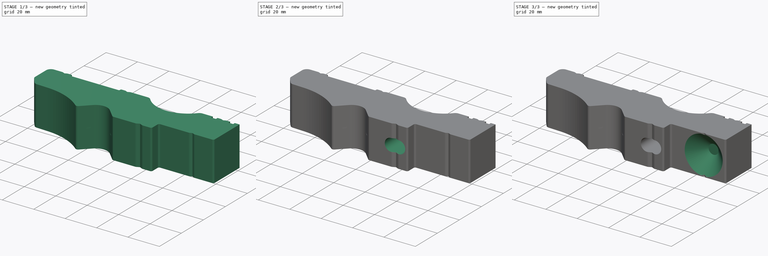
[diagram: build sequence overview — one tinted view per stage of 3, left to right]
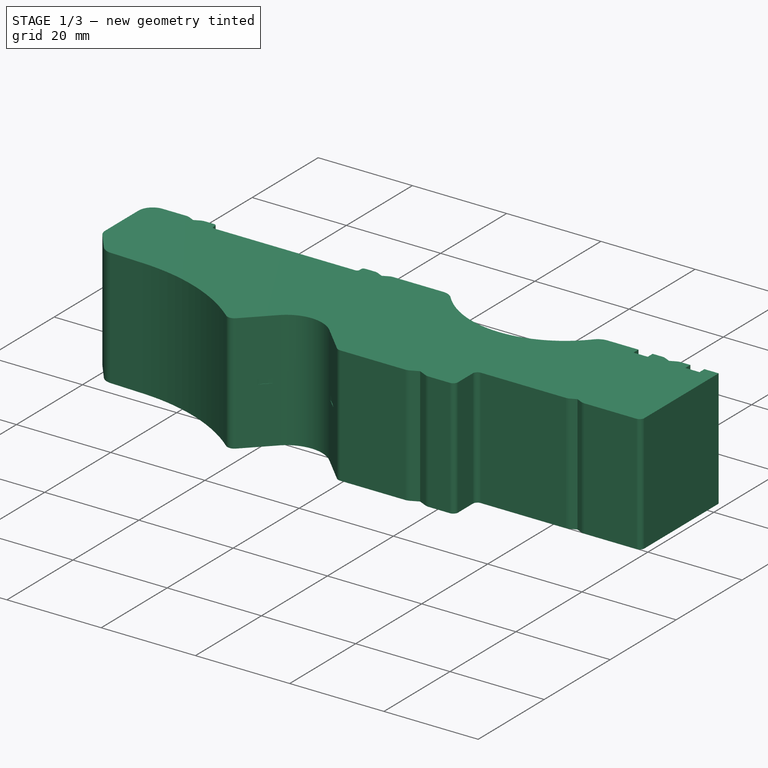
[diagram: stage 1 of 3 — iso view after this stage's code; geometry added in this stage tinted green]
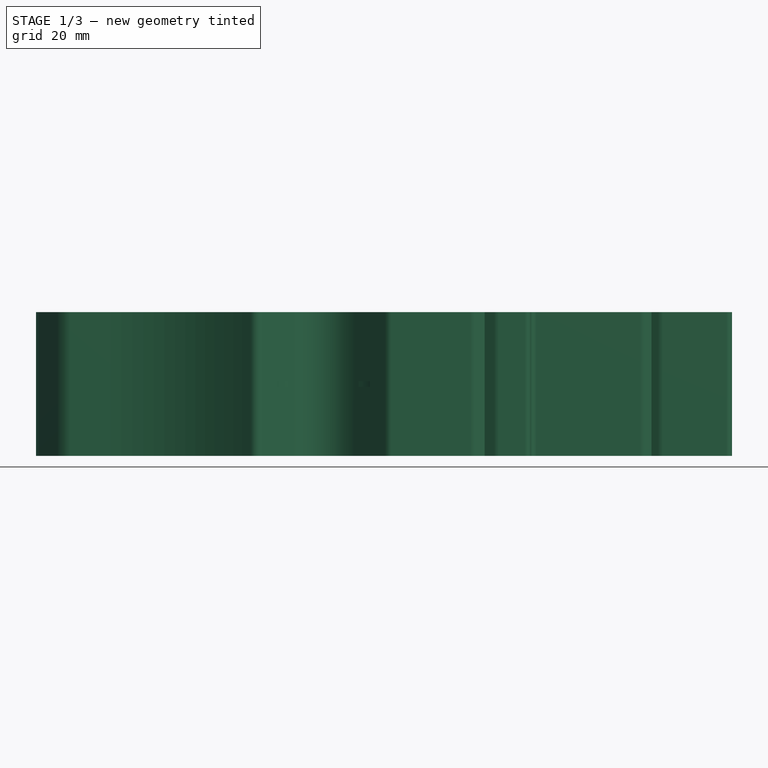
[diagram: stage 1 of 3 — front view after this stage's code; geometry added in this stage tinted green]
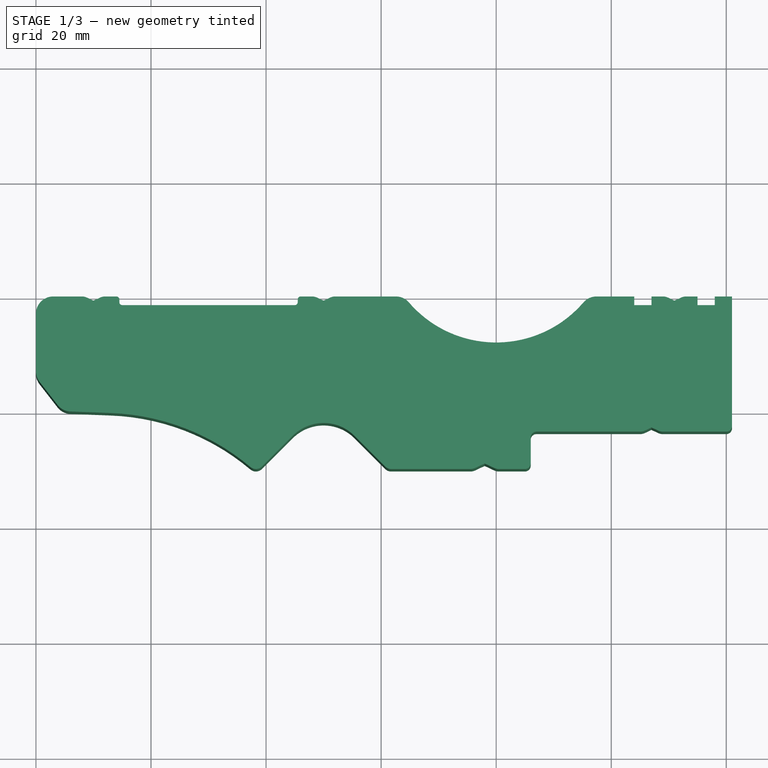
[diagram: stage 1 of 3 — top view after this stage's code; geometry added in this stage tinted green]
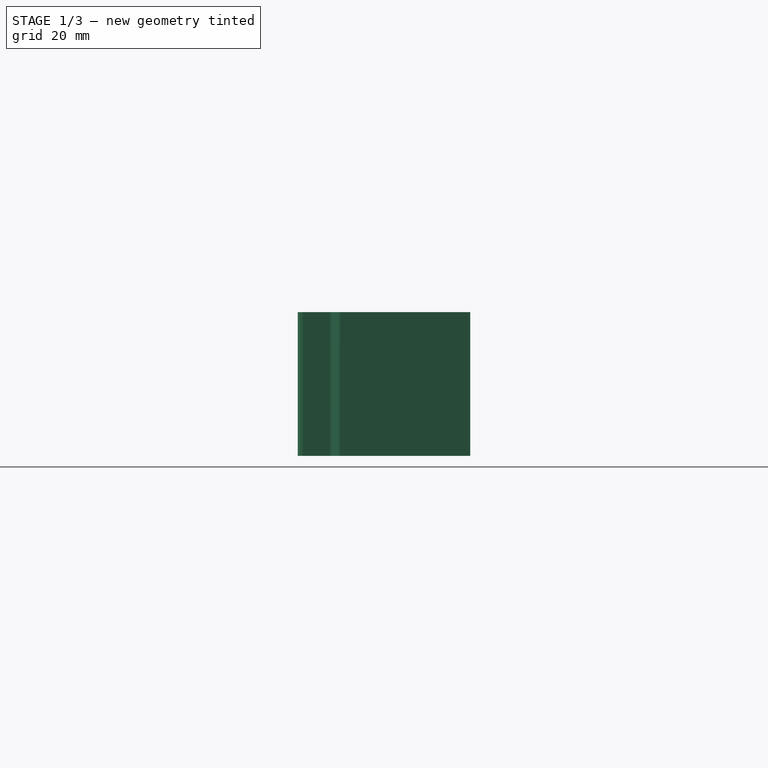
[diagram: stage 1 of 3 — right view after this stage's code; geometry added in this stage tinted green]
FCSTD DOCUMENT  (FreeCAD 0.19R24267 +99 (Git))
Label: V2 Clamp top
License: All rights reserved
LicenseURL: http://en.wikipedia.org/wiki/All_rights_reserved
objects: Sketcher::SketchObject×6, PartDesign::Pocket×4, PartDesign::Pad×1, PartDesign::Hole×1, PartDesign::Body×1
note: 19 computed .brp shape members not serialized (recipe doc carries the construction recipe); baked Part::Feature solids carry a one-line shape summary decoded from their .brp

FEATURE [Sketcher::SketchObject] Sketch  label="Main profile sketch"
  FullyConstrained = true
  MapMode = 5
  Support = -> [XY_Plane]
  sketch-geometry (86):
    g0: LineSegment StartX=0 StartY=-3 StartZ=0 EndX=0 EndY=-13 EndZ=0
    g1: LineSegment StartX=3 StartY=0 StartZ=0 EndX=8 EndY=0 EndZ=0
    g2: ArcOfCircle CenterX=3 CenterY=-3 CenterZ=0 NormalX=0 NormalY=0 NormalZ=1 AngleXU=0 Radius=3 StartAngle=1.5708 EndAngle=3.14159
    g3: LineSegment StartX=6 StartY=-20 StartZ=0 EndX=13 EndY=-20.2636 EndZ=0
    g4: Circle CenterX=50 CenterY=-33 CenterZ=0 NormalX=0 NormalY=0 NormalZ=1 AngleXU=0 Radius=10
    g5: GeomPoint X=0 Y=-63 Z=0
    g6: GeomPoint X=0 Y=-28 Z=0
    g7: ArcOfCircle CenterX=50 CenterY=-29.5858 CenterZ=0 NormalX=0 NormalY=0 NormalZ=1 AngleXU=0 Radius=7.58579 StartAngle=0.785398 EndAngle=2.35619
    g8: LineSegment StartX=44.636 StartY=-24.2218 StartZ=0 EndX=39.2972 EndY=-29.5607 EndZ=0
    g9: LineSegment StartX=55.364 StartY=-24.2218 StartZ=0 EndX=60.7028 EndY=-29.5607 EndZ=0
    g10: ArcOfCircle CenterX=38.2365 CenterY=-28.5 CenterZ=0 NormalX=0 NormalY=0 NormalZ=1 AngleXU=0 Radius=1.5 StartAngle=4.01218 EndAngle=5.49779
    g11: ArcOfCircle CenterX=11.4948 CenterY=-60.2353 CenterZ=0 NormalX=0 NormalY=0 NormalZ=1 AngleXU=0 Radius=40 StartAngle=0.870584 EndAngle=1.53316
    g12: LineSegment StartX=50 StartY=-33 StartZ=0 EndX=50 EndY=-22 EndZ=0
    g13: GeomPoint X=50 Y=-23 Z=0
    g14: LineSegment StartX=61.7635 StartY=-30 StartZ=0 EndX=75.5 EndY=-30 EndZ=0
    g15: ArcOfCircle CenterX=61.7635 CenterY=-28.5 CenterZ=0 NormalX=0 NormalY=0 NormalZ=1 AngleXU=0 Radius=1.5 StartAngle=3.92699 EndAngle=4.71239
    g16: ArcOfCircle CenterX=80 CenterY=12 CenterZ=0 NormalX=0 NormalY=0 NormalZ=1 AngleXU=0 Radius=20 StartAngle=3.85204 EndAngle=5.57274
    g17: ArcOfCircle CenterX=62.5644 CenterY=-3 CenterZ=0 NormalX=0 NormalY=0 NormalZ=1 AngleXU=0 Radius=3 StartAngle=0.710449 EndAngle=1.5708
    g18: ArcOfCircle CenterX=97.4356 CenterY=-3 CenterZ=0 NormalX=0 NormalY=0 NormalZ=1 AngleXU=0 Radius=3 StartAngle=1.5708 EndAngle=2.43114
    g19: LineSegment StartX=75.5 StartY=-30 StartZ=0 EndX=80.5 EndY=-30 EndZ=0
    g20: LineSegment StartX=76.3452 StartY=-29.8126 StartZ=0 EndX=78 EndY=-29.041 EndZ=0
    g21: LineSegment StartX=78 StartY=-29.041 StartZ=0 EndX=79.6548 EndY=-29.8126 EndZ=0
    g22: LineSegment StartX=80.5 StartY=-30 StartZ=0 EndX=85 EndY=-30 EndZ=0
    g23: ArcOfCircle CenterX=75.5 CenterY=-28 CenterZ=0 NormalX=0 NormalY=0 NormalZ=1 AngleXU=0 Radius=2 StartAngle=4.71239 EndAngle=5.14872
    g24: ArcOfCircle CenterX=80.5 CenterY=-28 CenterZ=0 NormalX=0 NormalY=0 NormalZ=1 AngleXU=0 Radius=2 StartAngle=4.27606 EndAngle=4.71239
    g25: LineSegment StartX=86 StartY=-29 StartZ=0 EndX=86 EndY=-24.5 EndZ=0
    g26: LineSegment StartX=87 StartY=-23.5 StartZ=0 EndX=94.8579 EndY=-23.5 EndZ=0
    g27: LineSegment StartX=94.8579 StartY=-23.5 StartZ=0 EndX=103.858 EndY=-14.5 EndZ=0
    g28: LineSegment StartX=103.858 StartY=-14.5 StartZ=0 EndX=110.142 EndY=-14.5 EndZ=0
    g29: LineSegment StartX=94.8579 StartY=-23.5 StartZ=0 EndX=105 EndY=-23.5 EndZ=0
    g30: LineSegment StartX=110.142 StartY=-14.5 StartZ=0 EndX=119.142 EndY=-23.5 EndZ=0
    g31: LineSegment StartX=119.142 StartY=-23.5 StartZ=0 EndX=120 EndY=-23.5 EndZ=0
    g32: LineSegment StartX=121 StartY=0 StartZ=0 EndX=121 EndY=-22.5 EndZ=0
    g33: ArcOfCircle CenterX=120 CenterY=-22.5 CenterZ=0 NormalX=0 NormalY=0 NormalZ=1 AngleXU=0 Radius=1 StartAngle=4.71239 EndAngle=6.28319
    g34: LineSegment StartX=62.5644 StartY=0 StartZ=0 EndX=97.4356 EndY=0 EndZ=0
    g35: Circle CenterX=107 CenterY=-25.5 CenterZ=0 NormalX=0 NormalY=0 NormalZ=1 AngleXU=0 Radius=10
    g36: LineSegment StartX=107 StartY=-25.5 StartZ=0 EndX=107 EndY=-14.5 EndZ=0
    g37: GeomPoint X=107 Y=-15.5 Z=0
    g38: ArcOfCircle CenterX=85 CenterY=-29 CenterZ=0 NormalX=0 NormalY=0 NormalZ=1 AngleXU=0 Radius=1 StartAngle=4.71239 EndAngle=6.28319
    g39: ArcOfCircle CenterX=87 CenterY=-24.5 CenterZ=0 NormalX=0 NormalY=0 NormalZ=1 AngleXU=0 Radius=1 StartAngle=1.5708 EndAngle=3.14159
    g40: LineSegment StartX=109.845 StartY=-0.187384 StartZ=0 EndX=111 EndY=-0.725859 EndZ=0
    g41: LineSegment StartX=111 StartY=-0.725859 StartZ=0 EndX=112.155 EndY=-0.187384 EndZ=0
    g42: LineSegment StartX=109 StartY=0 StartZ=0 EndX=107 EndY=0 EndZ=0
    g43: ArcOfCircle CenterX=109 CenterY=-2 CenterZ=0 NormalX=0 NormalY=0 NormalZ=1 AngleXU=0 Radius=2 StartAngle=1.13446 EndAngle=1.5708
    g44: ArcOfCircle CenterX=113 CenterY=-2 CenterZ=0 NormalX=0 NormalY=0 NormalZ=1 AngleXU=0 Radius=2 StartAngle=1.5708 EndAngle=2.00713
    g45: LineSegment StartX=105.845 StartY=-23.3126 StartZ=0 EndX=107 EndY=-22.7741 EndZ=0
    g46: LineSegment StartX=107 StartY=-22.7741 StartZ=0 EndX=108.155 EndY=-23.3126 EndZ=0
    g47: LineSegment StartX=109 StartY=-23.5 StartZ=0 EndX=119.142 EndY=-23.5 EndZ=0
    g48: LineSegment StartX=105 StartY=-23.5 StartZ=0 EndX=109 EndY=-23.5 EndZ=0
    g49: ArcOfCircle CenterX=105 CenterY=-21.5 CenterZ=0 NormalX=0 NormalY=0 NormalZ=1 AngleXU=0 Radius=2 StartAngle=4.71239 EndAngle=5.14872
    g50: ArcOfCircle CenterX=109 CenterY=-21.5 CenterZ=0 NormalX=0 NormalY=0 NormalZ=1 AngleXU=0 Radius=2 StartAngle=4.27606 EndAngle=4.71239
    g51: ArcOfCircle CenterX=3 CenterY=-13 CenterZ=0 NormalX=0 NormalY=0 NormalZ=1 AngleXU=0 Radius=3 StartAngle=3.14159 EndAngle=3.80266
    g52: LineSegment StartX=0.63198 StartY=-14.8419 StartZ=0 EndX=3.74487 EndY=-18.844 EndZ=0
    g53: LineSegment StartX=8.84524 StartY=-0.187384 StartZ=0 EndX=10 EndY=-0.725859 EndZ=0
    g54: LineSegment StartX=10 StartY=-0.725859 StartZ=0 EndX=11.1548 EndY=-0.187384 EndZ=0
    g55: LineSegment StartX=51.1548 StartY=-0.187384 StartZ=0 EndX=50 EndY=-0.725859 EndZ=0
    g56: LineSegment StartX=50 StartY=-0.725859 StartZ=0 EndX=48.8452 EndY=-0.187384 EndZ=0
    g57: LineSegment StartX=12 StartY=-1.164e-13 StartZ=0 EndX=14 EndY=0 EndZ=0
    g58: LineSegment StartX=52 StartY=-9.95e-14 StartZ=0 EndX=62.5644 EndY=0 EndZ=0
    g59: ArcOfCircle CenterX=8 CenterY=-2 CenterZ=0 NormalX=0 NormalY=0 NormalZ=1 AngleXU=0 Radius=2 StartAngle=1.13446 EndAngle=1.5708
    g60: ArcOfCircle CenterX=12 CenterY=-2 CenterZ=0 NormalX=0 NormalY=0 NormalZ=1 AngleXU=0 Radius=2 StartAngle=1.5708 EndAngle=2.00713
    g61: ArcOfCircle CenterX=48 CenterY=-2 CenterZ=0 NormalX=0 NormalY=0 NormalZ=1 AngleXU=0 Radius=2 StartAngle=1.13446 EndAngle=1.5708
    g62: ArcOfCircle CenterX=52 CenterY=-2 CenterZ=0 NormalX=0 NormalY=0 NormalZ=1 AngleXU=0 Radius=2 StartAngle=1.5708 EndAngle=2.00713
    g63: ArcOfCircle CenterX=6.11289 CenterY=-17.0021 CenterZ=0 NormalX=0 NormalY=0 NormalZ=1 AngleXU=0 Radius=3 StartAngle=3.80266 EndAngle=4.67475
    g64: LineSegment StartX=118 StartY=0 StartZ=0 EndX=118 EndY=-1.5 EndZ=0
    g65: LineSegment StartX=118 StartY=-1.5 StartZ=0 EndX=115 EndY=-1.5 EndZ=0
    g66: LineSegment StartX=115 StartY=-1.5 StartZ=0 EndX=115 EndY=0 EndZ=0
    g67: LineSegment StartX=115 StartY=0 StartZ=0 EndX=113 EndY=0 EndZ=0
    g68: LineSegment StartX=115 StartY=0 StartZ=0 EndX=118 EndY=0 EndZ=0
    g69: LineSegment StartX=118 StartY=0 StartZ=0 EndX=121 EndY=0 EndZ=0
    g70: GeomPoint X=116.5 Y=-1.5 Z=0
    g71: LineSegment StartX=38.2365 StartY=-30 StartZ=0 EndX=61.7635 EndY=-30 EndZ=0
    g72: LineSegment StartX=107 StartY=0 StartZ=0 EndX=107 EndY=-1.5 EndZ=0
    g73: LineSegment StartX=107 StartY=-1.5 StartZ=0 EndX=104 EndY=-1.5 EndZ=0
    g74: LineSegment StartX=104 StartY=-1.5 StartZ=0 EndX=104 EndY=0 EndZ=0
    g75: LineSegment StartX=107 StartY=-1.5 StartZ=0 EndX=115 EndY=-1.5 EndZ=0
    g76: LineSegment StartX=104 StartY=0 StartZ=0 EndX=97.4356 EndY=0 EndZ=0
    g77: LineSegment StartX=14.5 StartY=-0.5 StartZ=0 EndX=14.5 EndY=-1 EndZ=0
    g78: LineSegment StartX=15 StartY=-1.5 StartZ=0 EndX=45 EndY=-1.5 EndZ=0
    g79: LineSegment StartX=45.5 StartY=-1 StartZ=0 EndX=45.5 EndY=-0.5 EndZ=0
    g80: ArcOfCircle CenterX=15 CenterY=-1 CenterZ=0 NormalX=0 NormalY=0 NormalZ=1 AngleXU=0 Radius=0.5 StartAngle=3.14159 EndAngle=4.71239
    g81: ArcOfCircle CenterX=45 CenterY=-1 CenterZ=0 NormalX=0 NormalY=0 NormalZ=1 AngleXU=0 Radius=0.5 StartAngle=4.71239 EndAngle=6.28319
    g82: ArcOfCircle CenterX=14 CenterY=-0.5 CenterZ=0 NormalX=0 NormalY=0 NormalZ=1 AngleXU=0 Radius=0.5 StartAngle=0 EndAngle=1.5708
    g83: LineSegment StartX=48 StartY=-3.6e-15 StartZ=0 EndX=46 EndY=-3.6e-15 EndZ=0
    g84: ArcOfCircle CenterX=46 CenterY=-0.5 CenterZ=0 NormalX=0 NormalY=0 NormalZ=1 AngleXU=0 Radius=0.5 StartAngle=1.5708 EndAngle=3.14159
    g85: GeomPoint X=30 Y=-1.5 Z=0
  constraints (225):
    c: Tangent(g1,g2) = 1.5708
    c: Tangent(g0,g2) = -1.5708
    c: DistanceX(g-1,g4) = 50  'ROCKER PIN X'
    c: PointOnObject(g5,g-2)
    c: PointOnObject(g6,g-2)
    c: DistanceY(g5,g6) = 35  'CLAMP BASE HEIGHT'
    c: DistanceY(g5,g4) = 30  'ROCKER PIN Y'
    c: PointOnObject(g0,g-2)
    c: PointOnObject(g1,g-1)
    c: Radius(g2) = 3
    c: Radius(g4) = 10  'ROCKER PIN DIA'
    c: Tangent(g8,g4)
    c: Tangent(g8,g7) = -1.5708
    c: Tangent(g9,g7) = 1.5708
    c: Angle(g8,g9) = 1.5708
    c: Tangent(g10,g8) = 1.5708
    c: Radius(g10) = 1.5
    c: Tangent(g11,g10) = 1.5708
    c: Radius(g11) = 40
    c: Coincident(g12,g4)
    c: PointOnObject(g12,g7)
    c: Vertical(g12)
    c: PointOnObject(g13,g4)
    c: PointOnObject(g13,g12)
    c: DistanceY(g13,g12) = 1  'ROCKER PIN BOTTOM OFFSET'
    c: Symmetric(g7,g7,g12)
    c: Horizontal(g14)
    c: Tangent(g14,g15) = -1.5708
    c: Tangent(g9,g15) = -1.5708
    c: Equal(g15,g10)
    c: DistanceY(g4,g14) = 3
    c: Tangent(g16,g17) = 1.5708
    c: Tangent(g16,g18) = 1.5708
    c: Horizontal(g1)
    c: Equal(g2,g18)
    c: Equal(g18,g17)
    c: Radius(g16) = 20
    c: DistanceY(g58,g16) = 12
    c: Horizontal(g19)
    c: Coincident(g21,g20)
    c: Horizontal(g22)
    c: Equal(g20,g21)
    c: Tangent(g20,g23) = -1.5708
    c: Tangent(g14,g23) = -1.5708
    c: Tangent(g21,g24) = -1.5708
    c: Tangent(g22,g24) = -1.5708
    c: Coincident(g19,g14)
    c: Coincident(g22,g19)
    c: Equal(g23,g24)
    c: Angle(g20,g21) = 2.26893
    c: DistanceX(g20,g16) = 2
    c: Vertical(g25)
    c: Horizontal(g26)
    c: Coincident(g27,g26)
    c: Coincident(g28,g27)
    c: Horizontal(g28)
    c: Coincident(g29,g26)
    c: Horizontal(g29)
    c: Coincident(g30,g28)
    c: Coincident(g30,g47)
    c: Coincident(g31,g47)
    c: Horizontal(g31)
    c: Vertical(g32)
    c: Tangent(g31,g33) = -1.5708
    c: Horizontal(g34)
    c: Equal(g30,g27)
    c: Angle(g27,g30) = 1.5708
    c: Tangent(g27,g35)
    c: Tangent(g30,g35)
    c: Radius(g35) = 10
    c: DistanceY(g35,g31) = 2
    c: Coincident(g36,g35)
    c: PointOnObject(g36,g28)
    c: Vertical(g36)
    c: PointOnObject(g37,g36)
    c: PointOnObject(g37,g35)
    c: DistanceY(g37,g36) = 1
    c: DistanceX(g14,g22) = 5
    c: Tangent(g25,g38) = -1.5708
    c: Tangent(g22,g38) = -1.5708
    c: Tangent(g26,g39) = 1.5708
    c: Tangent(g25,g39) = 1.5708
    c: DistanceX(g16,g25) = 6
    c: Radius(g33) = 1
    c: Equal(g33,g38)
    c: Equal(g38,g39)
    c: Coincident(g41,g40)
    c: Equal(g40,g41)
    c: Tangent(g40,g43) = 1.5708
    c: Tangent(g42,g43) = -1.5708
    c: Tangent(g41,g44) = 1.5708
    c: Angle(g41,g40) = 2.26893
    c: Equal(g43,g44)
    c: DistanceX(g42,g67) = 4
    c: DistanceX(g40,g32) = 10
    c: Coincident(g18,g34)
    c: DistanceX(g4,g16) = 30
    c: PointOnObject(g45,g36)
    c: Coincident(g46,g45)
    c: Tangent(g29,g47)
    c: Equal(g45,g46)
    c: Tangent(g45,g49) = -1.5708
    c: Tangent(g29,g49) = -1.5708
    c: Tangent(g46,g50) = -1.5708
    c: Tangent(g47,g50) = -1.5708
    c: Coincident(g47,g48)
    c: Coincident(g48,g29)
    c: Equal(g49,g50)
    c: DistanceX(g29,g47) = 4
    c: Angle(g45,g46) = 2.26893
    c: DistanceX(g25,g45) = 21
    c: DistanceY(g4,g31) = 9.5
    c: Tangent(g0,g51) = -1.5708
    c: Equal(g2,g51)
    c: Vertical(g0)
    c: Tangent(g52,g51) = -1.5708
    c: Tangent(g3,g11) = 1.5708
    c: DistanceX(g0,g3) = 13
    c: Coincident(g54,g53)
    c: Coincident(g56,g55)
    c: Tangent(g1,g57)
    c: Tangent(g57,g58)
    c: Tangent(g1,g59) = 1.5708
    c: Tangent(g53,g59) = 1.5708
    c: Tangent(g54,g60) = 1.5708
    c: Tangent(g57,g60) = 1.5708
    c: Tangent(g56,g61) = -1.5708
    c: Tangent(g55,g62) = -1.5708
    c: Tangent(g58,g62) = 1.5708
    c: Equal(g59,g60)
    c: Equal(g60,g61)
    c: Equal(g61,g62)
    c: Equal(g62,g43)
    c: Equal(g53,g54)
    c: Equal(g55,g56)
    c: Angle(g55,g56) = 2.26893
    c: Angle(g54,g53) = 2.26893
    c: DistanceX(g1,g57) = 4
    c: DistanceX(g53,g55) = 40
    c: Radius(g59) = 2
    c: Equal(g23,g59)
    c: Tangent(g58,g17) = 1.5708
    c: Coincident(g34,g17)
    c: Equal(g49,g59)
    c: Tangent(g3,g63) = -1.5708
    c: Tangent(g52,g63) = -1.5708
    c: DistanceY(g3,g-1) = 20
    c: Equal(g63,g2)
    c: DistanceX(g-1,g3) = 6
    c: DistanceY(g6,g3) = 8
    c: Tangent(g32,g33) = 1.5708
    c: DistanceX(g36,g32) = 14
    c: Vertical(g64)
    c: Coincident(g65,g64)
    c: Horizontal(g65)
    c: Coincident(g66,g65)
    c: Vertical(g66)
    c: DistanceX(g66,g64) = 3
    c: DistanceY(g66,g66) = 1.5
    c: Coincident(g67,g66)
    c: Coincident(g68,g66)
    c: PointOnObject(g64,g-1)
    c: Horizontal(g67)
    c: Horizontal(g68)
    c: Horizontal(g42)
    c: Tangent(g67,g44) = -1.5708
    c: Coincident(g69,g64)
    c: Coincident(g69,g32)
    c: Horizontal(g69)
    c: Coincident(g64,g68)
    c: DistanceY(g3,g0) = 7
    c: DistanceX(g-1,g35) = 107
    c: DistanceY(g35,g-1) = 25.5
    c: DistanceX(g-1,g32) = 121
    c: Symmetric(g65,g64,g70)
    c: DistanceX(g70,g32) = 4.5
    c: PointOnObject(g71,g10)
    c: Coincident(g71,g14)
    c: Horizontal(g71)
    c: Tangent(g10,g71)
    c: DistanceX(g27,g28) = 6.28427
    c: DistanceX(g26,g31) = 24.2843
    c: DistanceY(g31,g28) = 9
    c: Vertical(g72)
    c: Coincident(g73,g72)
    c: Horizontal(g73)
    c: Coincident(g74,g73)
    c: Vertical(g74)
    c: DistanceX(g40,g66) = 4
    c: DistanceX(g72,g40) = 4
    c: DistanceX(g74,g72) = 3
    c: Coincident(g75,g72)
    c: Coincident(g75,g65)
    c: Horizontal(g75)
    c: Coincident(g42,g72)
    c: Coincident(g76,g74)
    c: Tangent(g42,g76)
    c: Tangent(g76,g18) = -1.5708
    c: DistanceX(g36,g65) = 8
    c: DistanceY(g35,g73) = 24
    c: Vertical(g77)
    c: Horizontal(g78)
    c: Vertical(g79)
    c: Tangent(g77,g80) = -1.5708
    c: Tangent(g78,g80) = -1.5708
    c: Tangent(g79,g81) = -1.5708
    c: Tangent(g78,g81) = -1.5708
    c: Tangent(g57,g82) = 1.5708
    c: Tangent(g77,g82) = 1.5708
    c: Horizontal(g83)
    c: Tangent(g83,g84) = -1.5708
    c: Tangent(g79,g84) = 1.5708
    c: DistanceX(g78,g78) = 30
    c: Symmetric(g78,g78,g85)
    c: DistanceX(g0,g85) = 30
    c: PointOnObject(g61,g-1)
    c: Equal(g82,g80)
    c: Equal(g80,g81)
    c: Equal(g81,g84)
    c: Radius(g84) = 0.5
    c: DistanceY(g78,g83) = 1.5
    c: DistanceY(g4,g78) = 31.5
    c: Tangent(g83,g61) = -1.5708
    c: DistanceX(g61,g58) = 4
    c: Equal(g83,g57)
FEATURE [PartDesign::Pad] Pad  label="Clamp width pad"
  Direction = (1,1,1)
  Length = 25
  Length2 = 100
  Midplane = true
  Profile = -> Sketch
  Type = 0
FEATURE [Sketcher::SketchObject] Sketch001  label="3D Render pin allignment sketch"
  FullyConstrained = true
  MapMode = 5
  Support = -> [XY_Plane]
  sketch-geometry (4):
    g0: Circle CenterX=50 CenterY=-33 CenterZ=0 NormalX=0 NormalY=0 NormalZ=1 AngleXU=0 Radius=10.1
    g1: GeomPoint X=0 Y=-20 Z=0
    g2: GeomPoint X=0 Y=-28 Z=0
    g3: GeomPoint X=0 Y=-63 Z=0
  constraints (9):
    c: DistanceX(g-1,g0) = 50
    c: PointOnObject(g1,g-2)
    c: PointOnObject(g2,g-2)
    c: DistanceY(g1,g-1) = 20
    c: DistanceY(g2,g1) = 8
    c: PointOnObject(g3,g-2)
    c: DistanceY(g3,g2) = 35
    c: DistanceY(g3,g0) = 30
    c: Radius(g0) = 10.1
FEATURE [PartDesign::Pocket] Pocket  label="3D Render pin allignment mark"
  BaseFeature = -> Pad
  Length = 1
  Length2 = 100
  Midplane = true
  Profile = -> Sketch001
  Type = 0
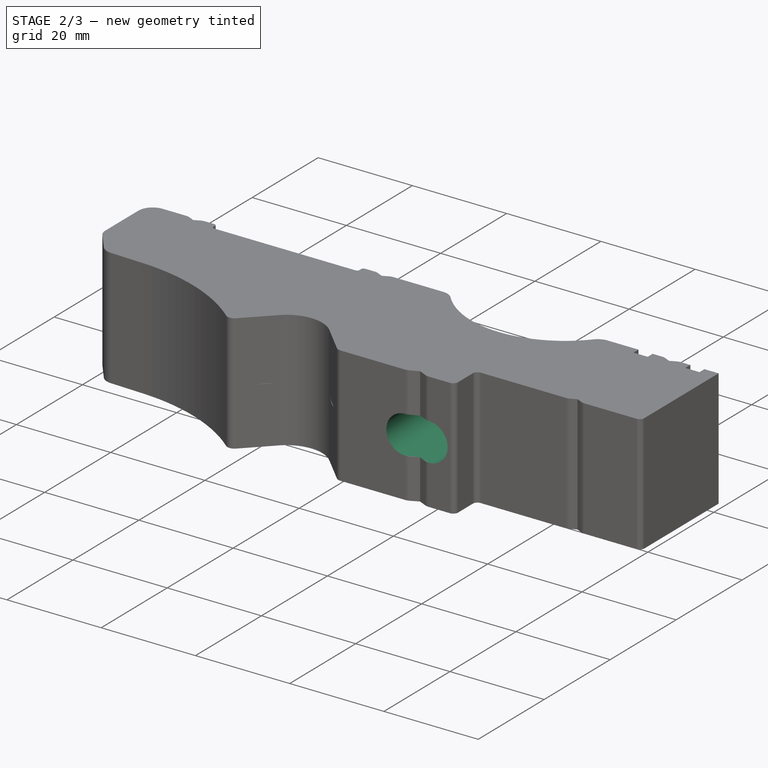
[diagram: stage 2 of 3 — iso view after this stage's code; geometry added in this stage tinted green]
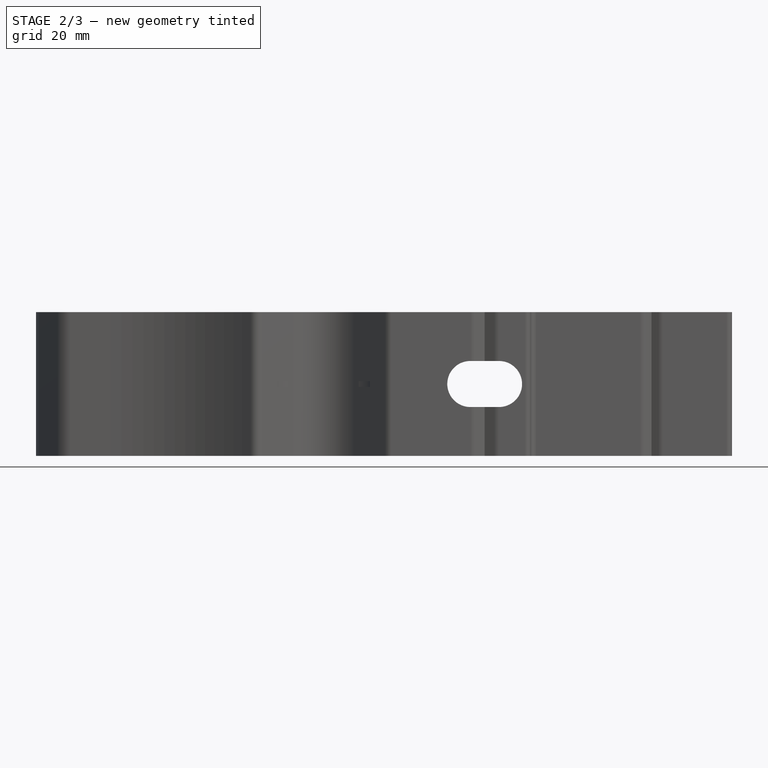
[diagram: stage 2 of 3 — front view after this stage's code; geometry added in this stage tinted green]
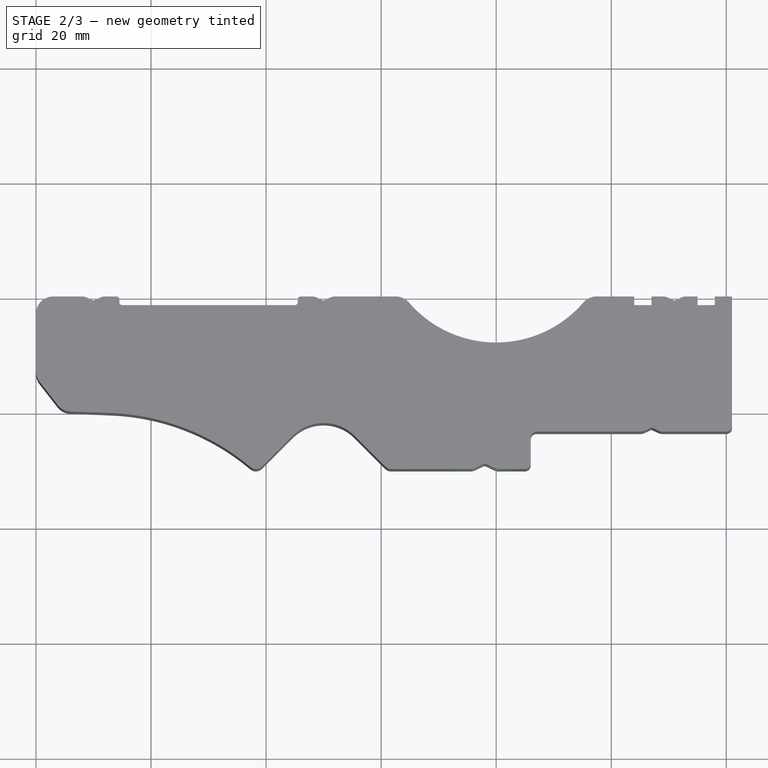
[diagram: stage 2 of 3 — top view after this stage's code; geometry added in this stage tinted green]
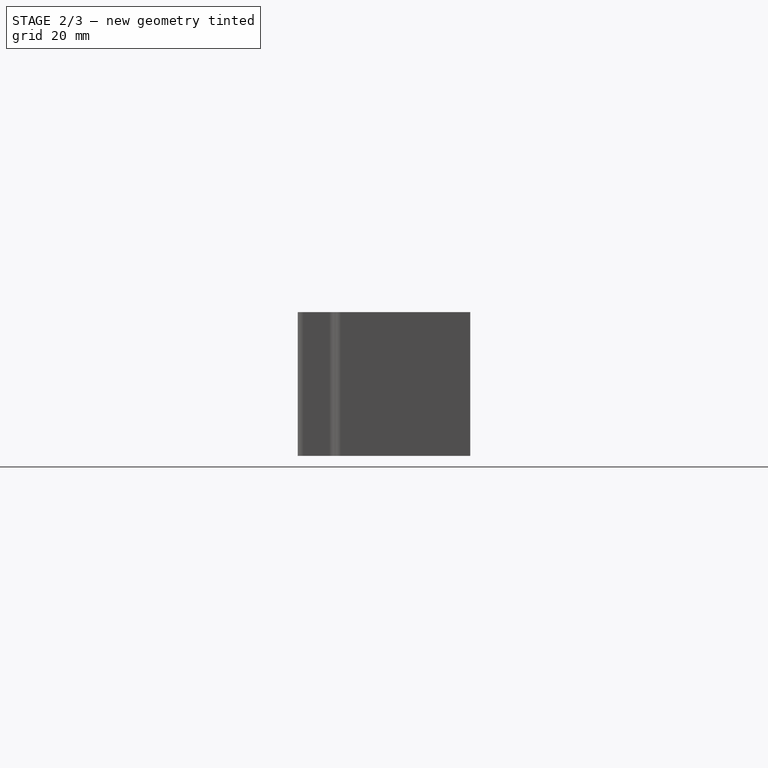
[diagram: stage 2 of 3 — right view after this stage's code; geometry added in this stage tinted green]
FEATURE [Sketcher::SketchObject] Sketch002  label="M8 long bolt slotted hole sketch"
  ExternalGeometry = -> [Pad]
  FullyConstrained = true
  MapMode = 5
  Placement = pos=(0,0,0) rot=(1,0,0;1.5708rad)
  Support = -> [XZ_Plane]
  sketch-geometry (5):
    g0: ArcOfCircle CenterX=80.5 CenterY=0 CenterZ=0 NormalX=0 NormalY=0 NormalZ=1 AngleXU=0 Radius=4 StartAngle=4.71239 EndAngle=7.85398
    g1: ArcOfCircle CenterX=75.5 CenterY=6.5e-15 CenterZ=0 NormalX=0 NormalY=0 NormalZ=1 AngleXU=0 Radius=4 StartAngle=1.5708 EndAngle=4.71239
    g2: LineSegment StartX=80.5 StartY=4 StartZ=0 EndX=75.5 EndY=4 EndZ=0
    g3: LineSegment StartX=80.5 StartY=-4 StartZ=0 EndX=75.5 EndY=-4 EndZ=0
    g4: Circle CenterX=78 CenterY=0 CenterZ=0 NormalX=0 NormalY=0 NormalZ=1 AngleXU=0 Radius=2.5
  constraints (13):
    c: Tangent(g0,g3) = 1.5708
    c: Tangent(g0,g2) = -1.5708
    c: Tangent(g2,g1) = -1.5708
    c: Tangent(g3,g1) = 1.5708
    c: Horizontal(g2)
    c: PointOnObject(g0,g-1)
    c: PointOnObject(g4,g-1)
    c: PointOnObject(g1,g4)
    c: PointOnObject(g0,g4)
    c: DistanceX(g1,g0) = 5
    c: Equal(g0,g1)
    c: Radius(g1) = 4
    c: PointOnObject(g4,g-3)
FEATURE [PartDesign::Pocket] Pocket001  label="M8 long bolt slotted hole"
  BaseFeature = -> Pocket
  Length = 5
  Length2 = 100
  Midplane = true
  Profile = -> Sketch002
  Type = 1
FEATURE [Sketcher::SketchObject] Sketch005  label="3D Render jaw allignment mark sketch"
  FullyConstrained = true
  MapMode = 5
  Support = -> [XY_Plane]
  sketch-geometry (1):
    g0: Circle CenterX=107 CenterY=-25.5 CenterZ=0 NormalX=0 NormalY=0 NormalZ=1 AngleXU=0 Radius=2.475
  constraints (3):
    c: DistanceY(g0,g-1) = 25.5
    c: DistanceX(g0) = 107
    c: Diameter(g0) = 4.95
FEATURE [PartDesign::Pocket] Pocket003  label="3D Render jaw allignment mark"
  BaseFeature = -> Pocket001
  Length = 5
  Length2 = 100
  Midplane = true
  Profile = -> Sketch005
  Type = 1
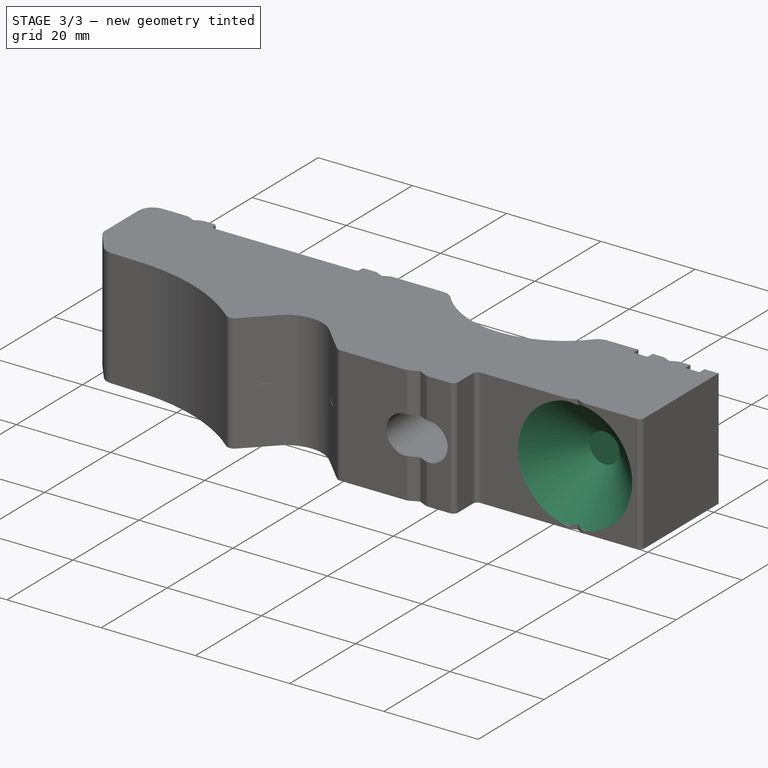
[diagram: stage 3 of 3 — iso view after this stage's code; geometry added in this stage tinted green]
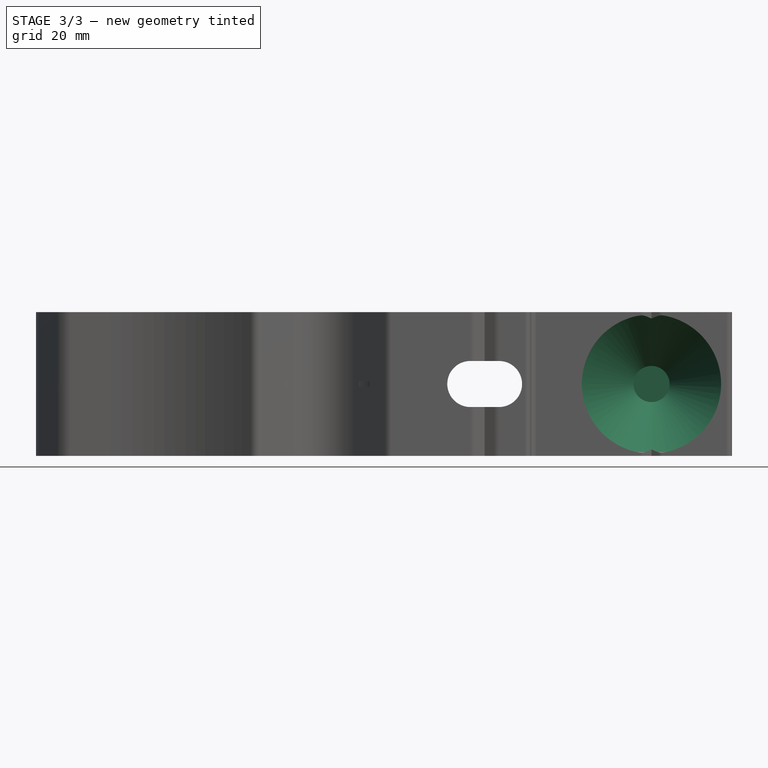
[diagram: stage 3 of 3 — front view after this stage's code; geometry added in this stage tinted green]
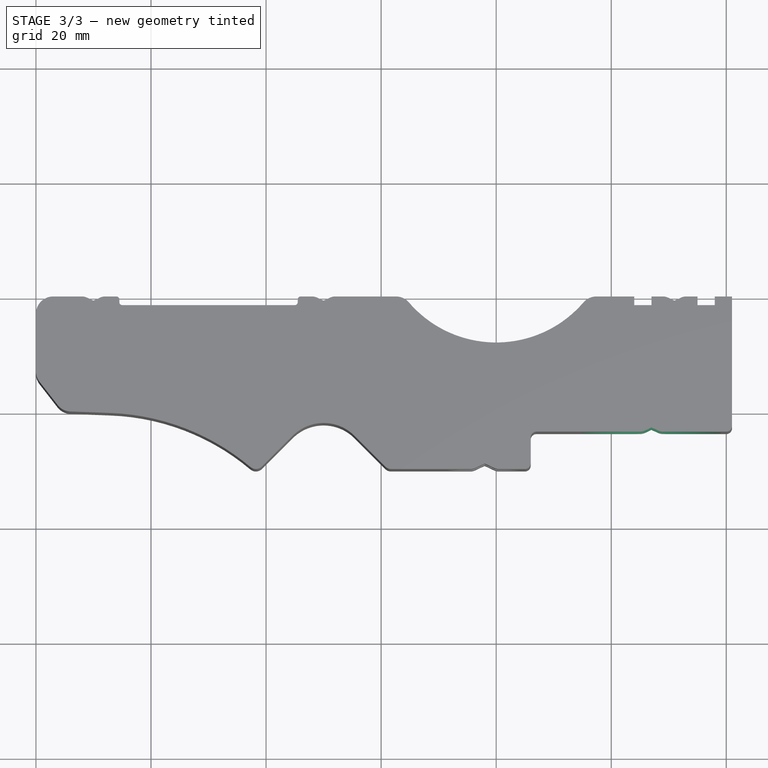
[diagram: stage 3 of 3 — top view after this stage's code; geometry added in this stage tinted green]
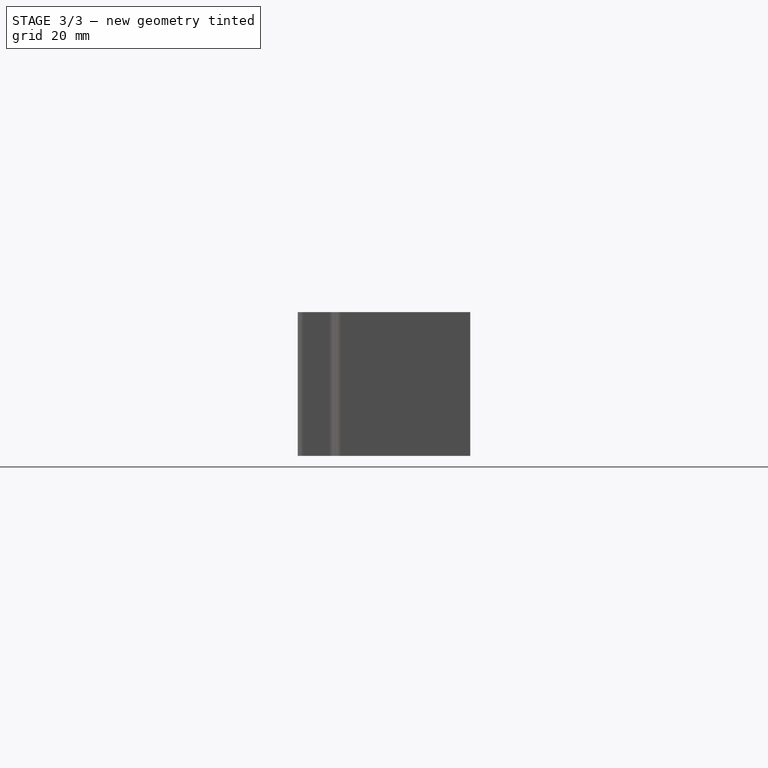
[diagram: stage 3 of 3 — right view after this stage's code; geometry added in this stage tinted green]
FEATURE [Sketcher::SketchObject] Sketch006  label="Blind tapped M5 holes sketch"
  ExternalGeometry = -> [Pocket003]
  FullyConstrained = true
  MapMode = 5
  Placement = pos=(0,0,0) rot=(1,0,0;1.5708rad)
  Support = -> [XZ_Plane]
  sketch-geometry (8):
    g0: LineSegment StartX=111 StartY=7 StartZ=0 EndX=10 EndY=7 EndZ=0
    g1: LineSegment StartX=111 StartY=-7 StartZ=0 EndX=10 EndY=-7 EndZ=0
    g2: Circle CenterX=10 CenterY=7 CenterZ=0 NormalX=0 NormalY=0 NormalZ=1 AngleXU=0 Radius=2.5
    g3: Circle CenterX=10 CenterY=-7 CenterZ=0 NormalX=0 NormalY=0 NormalZ=1 AngleXU=0 Radius=2.5
    g4: Circle CenterX=50 CenterY=7 CenterZ=0 NormalX=0 NormalY=0 NormalZ=1 AngleXU=0 Radius=2.5
    g5: Circle CenterX=50 CenterY=-7 CenterZ=0 NormalX=0 NormalY=0 NormalZ=1 AngleXU=0 Radius=2.5
    g6: Circle CenterX=111 CenterY=-7 CenterZ=0 NormalX=0 NormalY=0 NormalZ=1 AngleXU=0 Radius=2.5
    g7: Circle CenterX=111 CenterY=7 CenterZ=0 NormalX=0 NormalY=0 NormalZ=1 AngleXU=0 Radius=2.5
  constraints (21):
    c: Horizontal(g0)
    c: Horizontal(g1)
    c: Coincident(g2,g0)
    c: Coincident(g3,g1)
    c: PointOnObject(g4,g0)
    c: PointOnObject(g5,g1)
    c: Equal(g2,g3)
    c: Equal(g3,g5)
    c: Equal(g5,g4)
    c: Coincident(g6,g1)
    c: Equal(g7,g6)
    c: Equal(g6,g5)
    c: Coincident(g0,g7)
    c: Symmetric(g7,g6,g-1)
    c: DistanceY(g6,g7) = 14
    c: Diameter(g6) = 5
    c: PointOnObject(g1,g-3)
    c: PointOnObject(g0,g-3)
    c: PointOnObject(g4,g-4)
    c: PointOnObject(g5,g-4)
    c: PointOnObject(g7,g-5)
FEATURE [PartDesign::Pocket] Pocket004  label="Blind tapped M5 holes representation"
  BaseFeature = -> Pocket003
  Length = 5
  Length2 = 100
  Profile = -> Sketch006
  Reversed = true
  Type = 0
FEATURE [Sketcher::SketchObject] Sketch007  label="Ball bearing countersink sketch"
  FullyConstrained = true
  MapMode = 5
  Placement = pos=(0,-23.5,0) rot=(1,0,0;1.5708rad)
  Support = -> [Pocket004]
  sketch-geometry (1):
    g0: Circle CenterX=107 CenterY=0 CenterZ=0 NormalX=0 NormalY=0 NormalZ=1 AngleXU=0 Radius=3.14
  constraints (3):
    c: PointOnObject(g0,g-1)
    c: DistanceX(g-1,g0) = 107
    c: Diameter(g0) = 6.28
FEATURE [PartDesign::Hole] Hole  label="Countersink for ball bearing"
  BaseFeature = -> Pocket004
  Depth = 9
  DepthType = 0
  Diameter = 6.28
  DrillForDepth = false
  DrillPoint = 0
  DrillPointAngle = 118
  HoleCutCountersinkAngle = 90
  HoleCutCustomValues = false
  HoleCutDepth = 0
  HoleCutDiameter = 24.2
  HoleCutType = 2
  ModelActualThread = false
  Profile = -> Sketch007
  Tapered = false
  TaperedAngle = 90
  ThreadAngle = 0
  ThreadClass = 0
  ThreadCutOffInner = 0
  ThreadCutOffOuter = 0
  ThreadDirection = 0
  ThreadFit = 0
  ThreadPitch = 0
  ThreadSize = 0
  ThreadType = 0
  Threaded = false
FEATURE [PartDesign::Body] Body
  Group = -> [Sketch,Pad,Sketch001,Pocket,Sketch002,Pocket001,Sketch005,Pocket003,Sketch006,Pocket004,Sketch007,Hole]
  Origin = -> Origin
  Tip = -> Hole
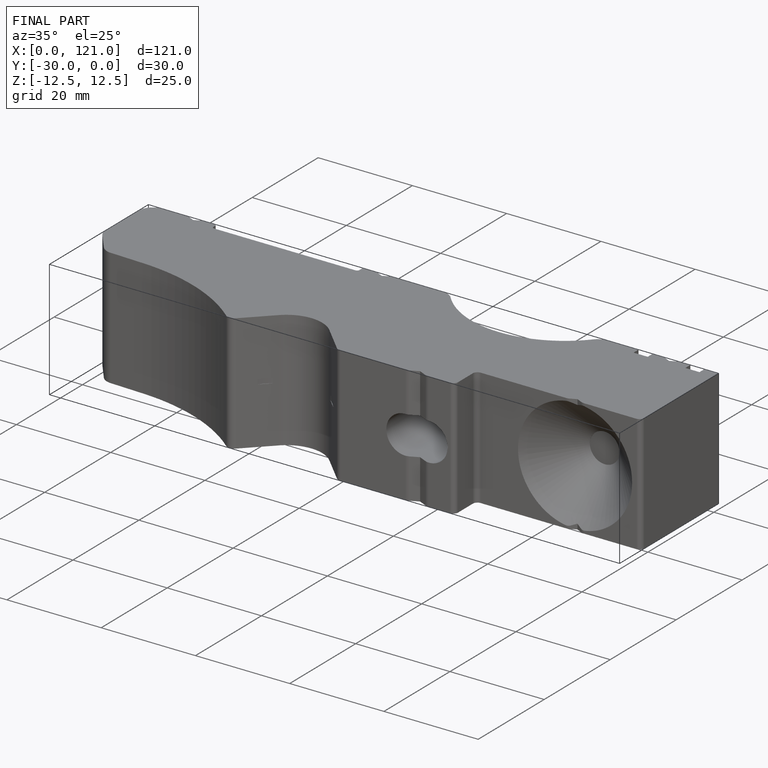
[diagram: finished part — iso view with bounding-box wireframe]
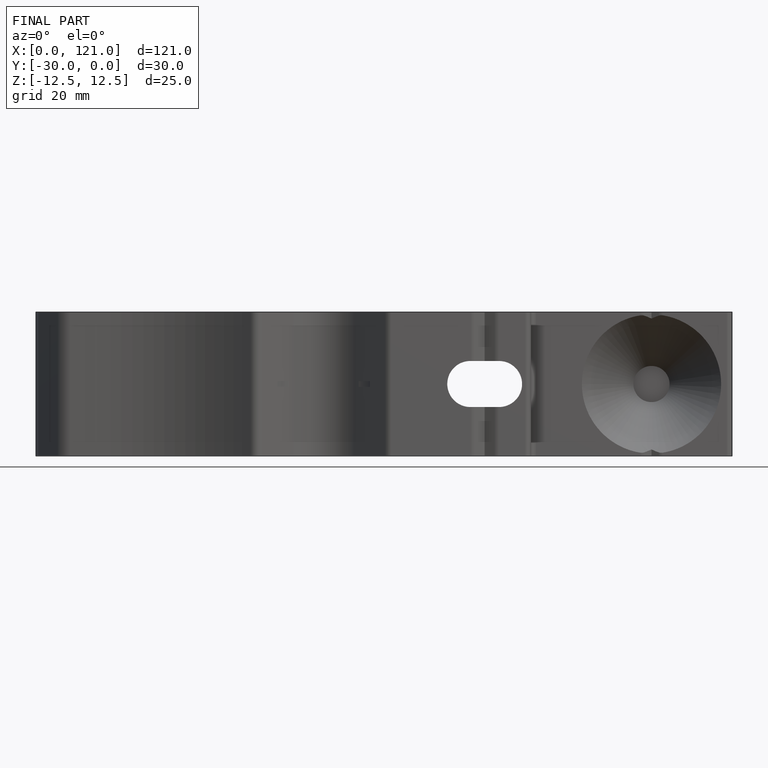
[diagram: finished part — front view with bounding-box wireframe]
